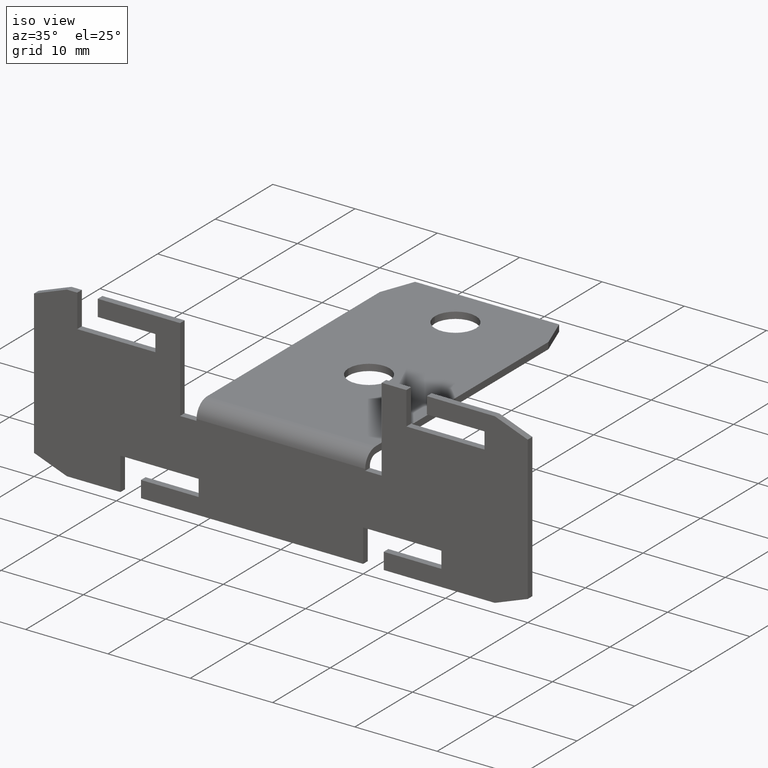
[diagram: clean part render]
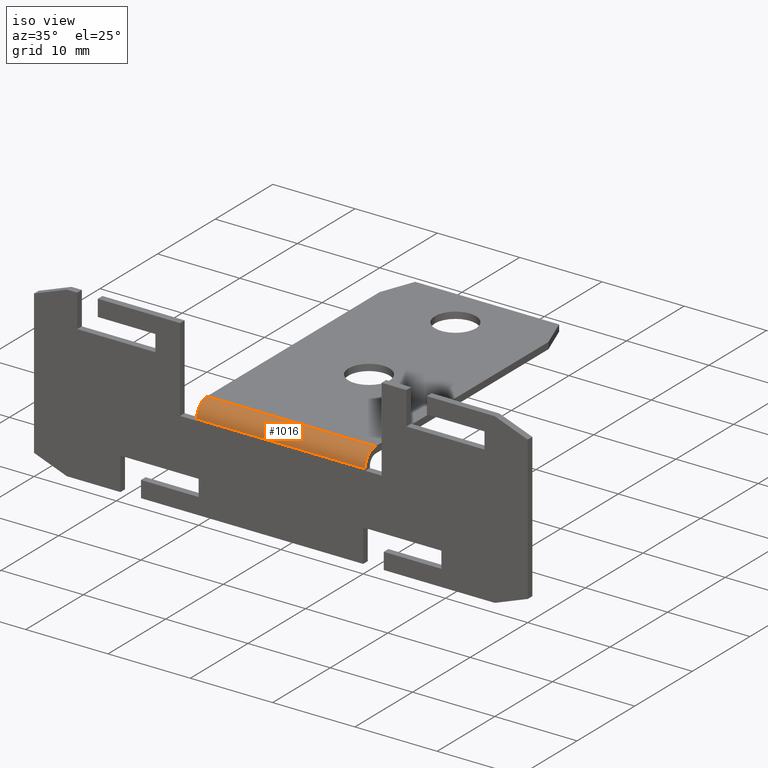
[diagram: same view with one face highlighted and labeled with its STEP entity id]
A machine part, iso view. The second image highlights one B-rep face of the part: STEP entity #1016.
In plain terms, the highlighted cylindrical surface (edge-blend (fillet) strip) has radius 1.8 mm, axis along (-1, 0, 0).
Its self-contained STEP definition (entity closure, byte-faithful):
#23=CIRCLE('',#1090,1.8);
#26=CIRCLE('',#1094,1.8);
#30=CYLINDRICAL_SURFACE('',#1097,1.8);
#66=FACE_OUTER_BOUND('',#120,.T.);
#120=EDGE_LOOP('',(#839,#840,#841,#842));
#208=LINE('',#1519,#344);
#236=LINE('',#1581,#372);
#344=VECTOR('',#1233,10.);
#372=VECTOR('',#1283,10.);
#461=VERTEX_POINT('',#1516);
#462=VERTEX_POINT('',#1518);
#484=VERTEX_POINT('',#1578);
#485=VERTEX_POINT('',#1580);
#576=EDGE_CURVE('',#461,#462,#208,.T.);
#608=EDGE_CURVE('',#485,#484,#236,.T.);
#613=EDGE_CURVE('',#461,#485,#23,.T.);
#622=EDGE_CURVE('',#462,#484,#26,.T.);
#839=ORIENTED_EDGE('',*,*,#608,.T.);
#840=ORIENTED_EDGE('',*,*,#622,.F.);
#841=ORIENTED_EDGE('',*,*,#576,.F.);
#842=ORIENTED_EDGE('',*,*,#613,.T.);
#1016=ADVANCED_FACE('',(#66),#30,.T.);
#1090=AXIS2_PLACEMENT_3D('',#1590,#1292,#1293);
#1094=AXIS2_PLACEMENT_3D('',#1606,#1306,#1307);
#1097=AXIS2_PLACEMENT_3D('',#1611,#1314,#1315);
#1233=DIRECTION('',(-1.,0.,0.));
#1283=DIRECTION('',(-1.,-1.52479014291346E-15,-1.52479014291346E-15));
#1292=DIRECTION('center_axis',(-1.,0.,0.));
#1293=DIRECTION('ref_axis',(1.2335811384724E-15,-1.,0.));
#1306=DIRECTION('center_axis',(-1.,0.,0.));
#1307=DIRECTION('ref_axis',(1.2335811384724E-15,-1.,0.));
#1314=DIRECTION('center_axis',(-1.,0.,0.));
#1315=DIRECTION('ref_axis',(1.2335811384724E-15,-1.,0.));
#1516=CARTESIAN_POINT('',(10.25,-8.04911692853238E-15,0.25));
#1518=CARTESIAN_POINT('',(-10.25,-8.04911692853238E-15,0.25));
#1519=CARTESIAN_POINT('',(20.125,-7.7715611723761E-15,0.25));
#1578=CARTESIAN_POINT('',(-10.25,1.79999999999999,2.05));
#1580=CARTESIAN_POINT('',(10.25,1.80000000000002,2.05));
#1581=CARTESIAN_POINT('',(-10.25,1.79999999999999,2.05));
#1590=CARTESIAN_POINT('Origin',(10.25,1.79999999999999,0.25));
#1606=CARTESIAN_POINT('Origin',(-10.25,1.79999999999999,0.25));
#1611=CARTESIAN_POINT('Origin',(0.,1.79999999999999,0.25));